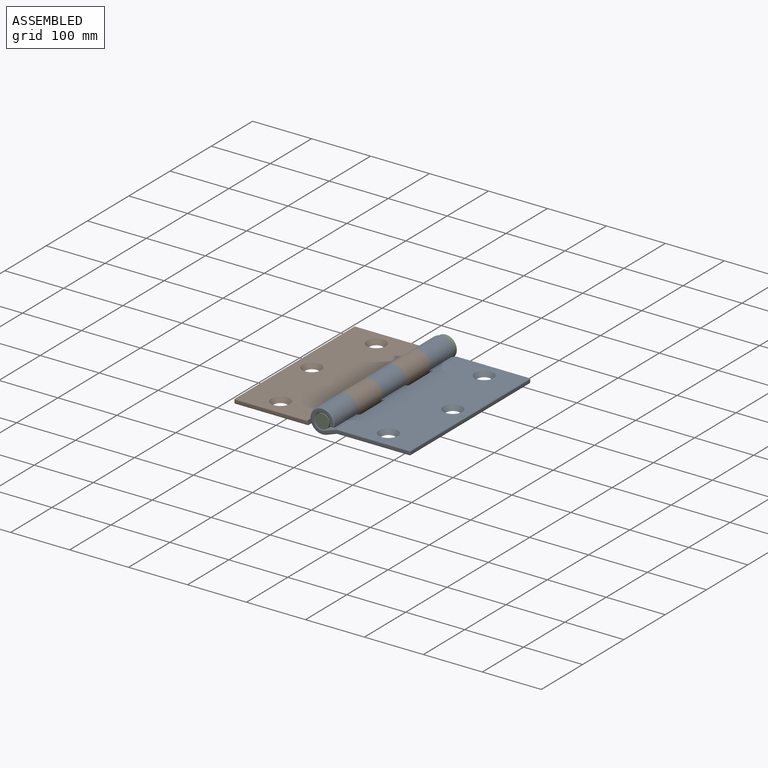
[diagram: assembled view]
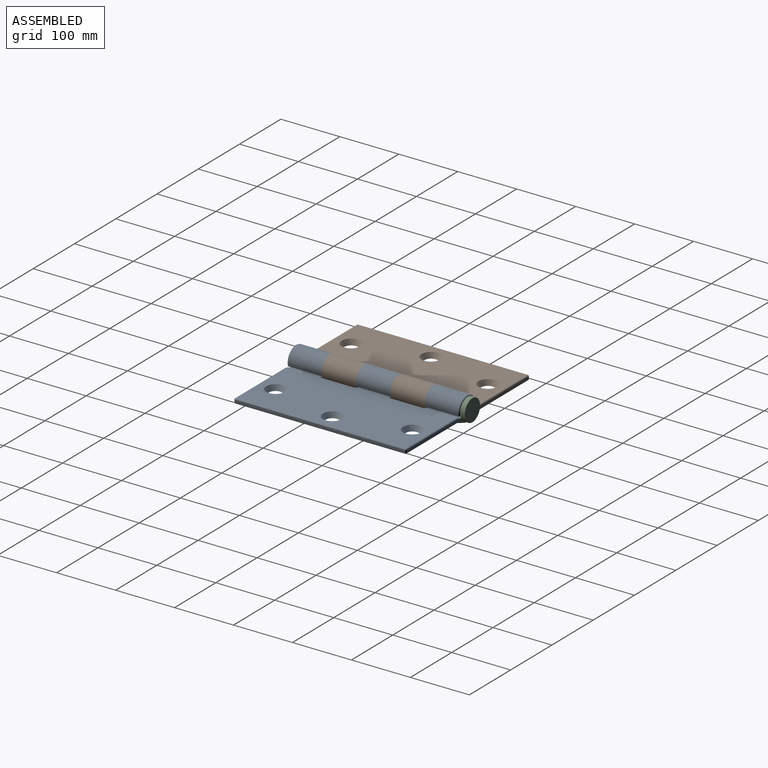
[diagram: assembled view, second angle]
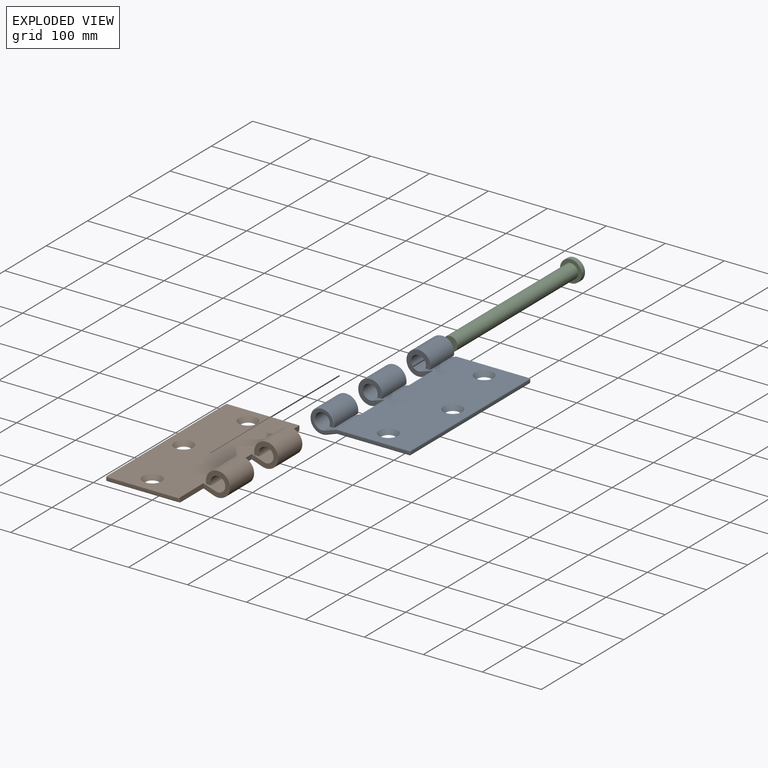
[diagram: exploded view]
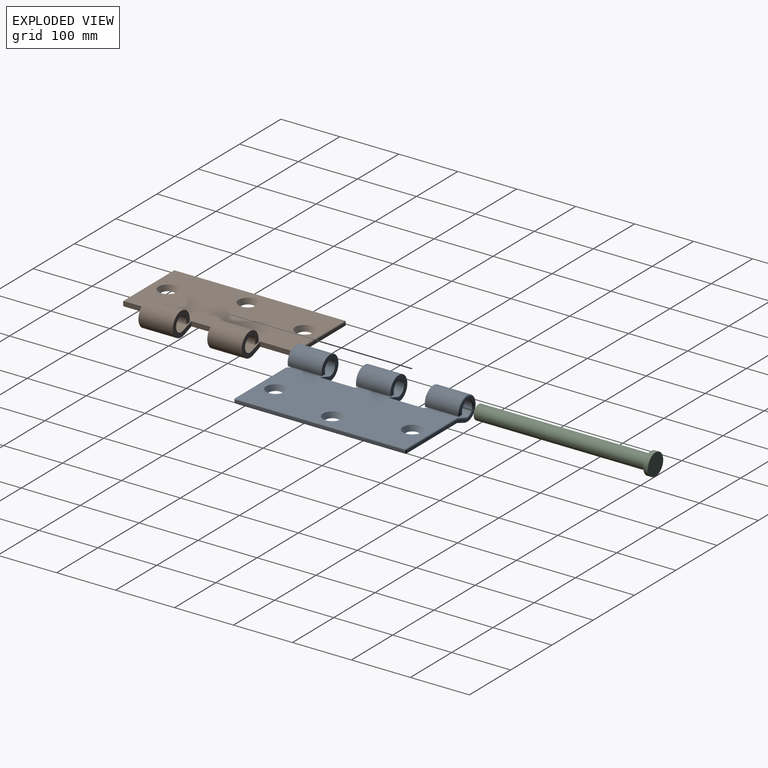
[diagram: exploded view, second angle]
ASSEMBLY  parts=3 mates=2
PART A: 51 faces, bbox 171.7x292x44.4 mm
  f0: cylinder r=12.5mm len=58.4mm, axis (0,1,0), area 3975.6mm2, adj f2,f8,f24,f28
  f1: cylinder r=12.5mm len=56.4mm, axis (0,1,0), area 3839.5mm2, adj f3,f9,f25,f41
  f2: plane 58.4x20.54mm, normal (-0.32,0,0.95), area 1264.7mm2, adj f0,f12,f24,f28
  f3: plane 56.4x20.54mm, normal (-0.32,0,0.95), area 1221.4mm2, adj f1,f12,f25,f36
  f4: plane 58.4x17.59mm, normal (0.34,0,-0.94), area 1091mm2, adj f6,f14,f24,f28
  f5: plane 56.4x17.59mm, normal (0.34,0,-0.94), area 1053.6mm2, adj f7,f14,f25,f49
  f6: cylinder r=20.5mm len=58.4mm, axis (0,1,0), area 6348.4mm2, adj f4,f8,f24,f28
  f7: cylinder r=20.5mm len=56.4mm, axis (0,1,0), area 6131mm2, adj f5,f9,f25,f47
  f8: plane 58.4x8.42mm, normal (0,0,-1), area 492mm2, adj f0,f6,f24,f28
  f9: plane 56.4x8.42mm, normal (0,0,-1), area 475.1mm2, adj f1,f7,f25,f44
  f10: cylinder r=12.5mm len=56.4mm, axis (0,1,0), area 3839.5mm2, adj f11,f17,f27,f29
  f11: plane 56.4x20.54mm, normal (-0.32,0,0.95), area 1221.4mm2, adj f10,f12,f27,f30
  f12: plane 288x123mm, normal (0,0,1), area 33011.3mm2, adj f2,f3,f11,f20,f21,f22,f23,f26
  f13: plane 288x4mm, normal (1,0,0), area 1152mm2, adj f38,f39,f45,f46
  f14: plane 288x123mm, normal (0,0,-1), area 34283.6mm2, adj f4,f5,f15,f20,f21,f22,f23,f26
  f15: plane 56.4x17.59mm, normal (0.34,0,-0.94), area 1053.6mm2, adj f14,f16,f27,f35
  f16: cylinder r=20.5mm len=56.4mm, axis (0,1,0), area 6131mm2, adj f15,f17,f27,f33
  f17: plane 56.4x8.42mm, normal (0,0,-1), area 475.1mm2, adj f10,f16,f27,f31
  f18: plane 166x37mm, normal (0,-1,0), area 913.5mm2, adj f36,f37,f41,f44,f45,f47,f49,f50
  f19: plane 166x37mm, normal (0,1,0), area 913.5mm2, adj f29,f30,f31,f32,f33,f35,f39,f40
  f20: cone r=11mm half-angle=32deg, axis (0,0,1), area 800.2mm2, adj f12,f14
  f21: cone r=11mm half-angle=32deg, axis (0,0,1), area 800.2mm2, adj f12,f14
  f22: cone r=11mm half-angle=32deg, axis (0,0,1), area 800.2mm2, adj f12,f14
  f23: plane 58.4x8mm, normal (-1,0,0), area 467.2mm2, adj f12,f14,f24,f25
  f24: plane 45x41mm, normal (0,-1,0), area 864mm2, adj f0,f2,f4,f6,f8,f23
  f25: plane 45x41mm, normal (0,1,0), area 864mm2, adj f1,f3,f5,f7,f9,f23
  f26: plane 58.4x8mm, normal (-1,0,0), area 467.2mm2, adj f12,f14,f27,f28
  f27: plane 45x41mm, normal (0,-1,0), area 864mm2, adj f10,f11,f15,f16,f17,f26
  f28: plane 45x41mm, normal (0,1,0), area 864mm2, adj f0,f2,f4,f6,f8,f26
  f29: torus R=14.5mm, axis (0,-1,0), area 222.9mm2, adj f10,f19,f30,f31
  f30: cylinder r=2mm len=21.18mm, axis (0.95,0,0.32), area 67.7mm2, adj f11,f19,f29,f32
  f31: cylinder r=2mm len=8.42mm, axis (-1,0,0), area 21.4mm2, adj f17,f19,f29,f33
  f32: cylinder r=2mm len=123mm, axis (1,0,0), area 386mm2, adj f12,f19,f30,f34
  f33: torus R=18.5mm, axis (0,-1,0), area 327.6mm2, adj f16,f19,f31,f35
  f34: sphere r=2mm, area 6.3mm2, adj f32,f38,f39
  f35: cylinder r=2mm len=18.59mm, axis (-0.94,0,-0.34), area 59.1mm2, adj f15,f19,f33,f40
  f36: cylinder r=2mm len=21.18mm, axis (-0.95,0,-0.32), area 67.7mm2, adj f3,f18,f37,f41
  f37: cylinder r=2mm len=123mm, axis (-1,0,0), area 386mm2, adj f12,f18,f36,f42
  f38: cylinder r=2mm len=288mm, axis (0,1,0), area 904.8mm2, adj f12,f13,f34,f42
  f39: cylinder r=2mm len=4mm, axis (0,0,-1), area 12.6mm2, adj f13,f19,f34,f43
  f40: cylinder r=2mm len=123.35mm, axis (-1,0,0), area 386.8mm2, adj f14,f19,f35,f43
  f41: torus R=14.5mm, axis (0,-1,0), area 222.9mm2, adj f1,f18,f36,f44
  f42: sphere r=2mm, area 6.3mm2, adj f37,f38,f45
  f43: sphere r=2mm, area 6.3mm2, adj f39,f40,f46
  f44: cylinder r=2mm len=8.42mm, axis (1,0,0), area 21.4mm2, adj f9,f18,f41,f47
  f45: cylinder r=2mm len=4mm, axis (0,0,1), area 12.6mm2, adj f13,f18,f42,f48
  f46: cylinder r=2mm len=288mm, axis (0,1,0), area 904.8mm2, adj f13,f14,f43,f48
  f47: torus R=18.5mm, axis (0,-1,0), area 327.6mm2, adj f7,f18,f44,f49
  f48: sphere r=2mm, area 6.3mm2, adj f45,f46,f50
  f49: cylinder r=2mm len=18.59mm, axis (0.94,0,0.34), area 59.1mm2, adj f5,f18,f47,f50
  f50: cylinder r=2mm len=123.35mm, axis (1,0,0), area 386.8mm2, adj f14,f18,f48,f49
PART B: 39 faces, bbox 170x292x41 mm
  f0: cylinder r=12.5mm len=58.4mm, axis (0,1,0), area 3975.6mm2, adj f2,f8,f21,f24
  f1: cylinder r=12.5mm len=58.4mm, axis (0,1,0), area 3975.6mm2, adj f3,f9,f19,f22
  f2: plane 58.4x20.54mm, normal (0.32,0,0.95), area 1264.7mm2, adj f0,f12,f21,f24
  f3: plane 58.4x20.54mm, normal (0.32,0,0.95), area 1264.7mm2, adj f1,f12,f19,f22
  f4: plane 58.4x17.59mm, normal (-0.34,0,-0.94), area 1091mm2, adj f6,f14,f21,f24
  f5: plane 58.4x17.59mm, normal (-0.34,0,-0.94), area 1091mm2, adj f7,f14,f19,f22
  f6: cylinder r=20.5mm len=58.4mm, axis (0,1,0), area 6348.4mm2, adj f4,f8,f21,f24
  f7: cylinder r=20.5mm len=58.4mm, axis (0,1,0), area 6348.4mm2, adj f5,f9,f19,f22
  f8: plane 58.4x8.42mm, normal (0,0,-1), area 492mm2, adj f0,f6,f21,f24
  f9: plane 58.4x8.42mm, normal (0,0,-1), area 492mm2, adj f1,f7,f19,f22
  f10: plane 121x4mm, normal (0,-1,0), area 484mm2, adj f25,f26,f27,f28
  f11: plane 121x4mm, normal (0,1,0), area 484mm2, adj f33,f36,f37,f38
  f12: plane 288x123mm, normal (0,0,1), area 33011.3mm2, adj f2,f3,f15,f16,f17,f18,f20,f23
  f13: plane 288x4mm, normal (-1,0,0), area 1152mm2, adj f28,f31,f32,f33
  f14: plane 288x123mm, normal (0,0,-1), area 34283.6mm2, adj f4,f5,f15,f16,f17,f18,f20,f23
  f15: cone r=11mm half-angle=32deg, axis (0,0,1), area 800.2mm2, adj f12,f14
  f16: cone r=11mm half-angle=32deg, axis (0,0,1), area 800.2mm2, adj f12,f14
  f17: cone r=11mm half-angle=32deg, axis (0,0,1), area 800.2mm2, adj f12,f14
  f18: plane 56.4x8mm, normal (1,0,0), area 451.2mm2, adj f12,f14,f19,f38
  f19: plane 45x41mm, normal (0,1,0), area 864mm2, adj f1,f3,f5,f7,f9,f18
  f20: plane 58.4x8mm, normal (1,0,0), area 467.2mm2, adj f12,f14,f21,f22
  f21: plane 45x41mm, normal (0,1,0), area 864mm2, adj f0,f2,f4,f6,f8,f20
  f22: plane 45x41mm, normal (0,-1,0), area 864mm2, adj f1,f3,f5,f7,f9,f20
  f23: plane 56.4x8mm, normal (1,0,0), area 451.2mm2, adj f12,f14,f24,f25
  f24: plane 45x41mm, normal (0,-1,0), area 864mm2, adj f0,f2,f4,f6,f8,f23
  f25: cylinder r=2mm len=8mm, axis (0,0,1), area 20.6mm2, adj f10,f23,f26,f27
  f26: cylinder r=2mm len=123mm, axis (-1,0,0), area 384.1mm2, adj f10,f14,f25,f29
  f27: cylinder r=2mm len=123mm, axis (1,0,0), area 384.1mm2, adj f10,f12,f25,f30
  f28: cylinder r=2mm len=4mm, axis (0,0,1), area 12.6mm2, adj f10,f13,f29,f30
  f29: sphere r=2mm, area 6.3mm2, adj f26,f28,f31
  f30: sphere r=2mm, area 6.3mm2, adj f27,f28,f32
  f31: cylinder r=2mm len=288mm, axis (0,1,0), area 904.8mm2, adj f13,f14,f29,f34
  f32: cylinder r=2mm len=288mm, axis (0,1,0), area 904.8mm2, adj f12,f13,f30,f35
  f33: cylinder r=2mm len=4mm, axis (0,0,-1), area 12.6mm2, adj f11,f13,f34,f35
  f34: sphere r=2mm, area 6.3mm2, adj f31,f33,f36
  f35: sphere r=2mm, area 6.3mm2, adj f32,f33,f37
  f36: cylinder r=2mm len=123mm, axis (1,0,0), area 384.1mm2, adj f11,f14,f34,f38
  f37: cylinder r=2mm len=123mm, axis (-1,0,0), area 384.1mm2, adj f11,f12,f35,f38
  f38: cylinder r=2mm len=8mm, axis (0,0,-1), area 20.6mm2, adj f11,f18,f36,f37
PART C: 5 faces, bbox 37x300x37 mm
  f0: cylinder r=12.25mm len=292mm, axis (0,-1,0), area 22475mm2, adj f1,f4
  f1: plane 24.5x24.5mm, normal (0,-1,0), area 471.4mm2, adj f0
  f2: cylinder r=18.5mm len=37mm, axis (0,-1,0), area 929.9mm2, adj f3,f4
  f3: plane 37x37mm, normal (0,1,0), area 1075.2mm2, adj f2
  f4: plane 37x37mm, normal (0,-1,0), area 603.8mm2, adj f0,f2
PLACE A t=(-147.34,91.88,79.39)mm
PLACE B t=(-146.34,91.88,79.39)mm
PLACE C t=(-121.84,-225.12,84.39)mm
MATE planar B.f0 <-> A.f0  axis (0,1,0) through (-121.84,-141.72,84.39)mm
MATE slider C.f0 <-> A.f0  axis (0,-1,0) through (-121.84,-200.12,84.39)mm
